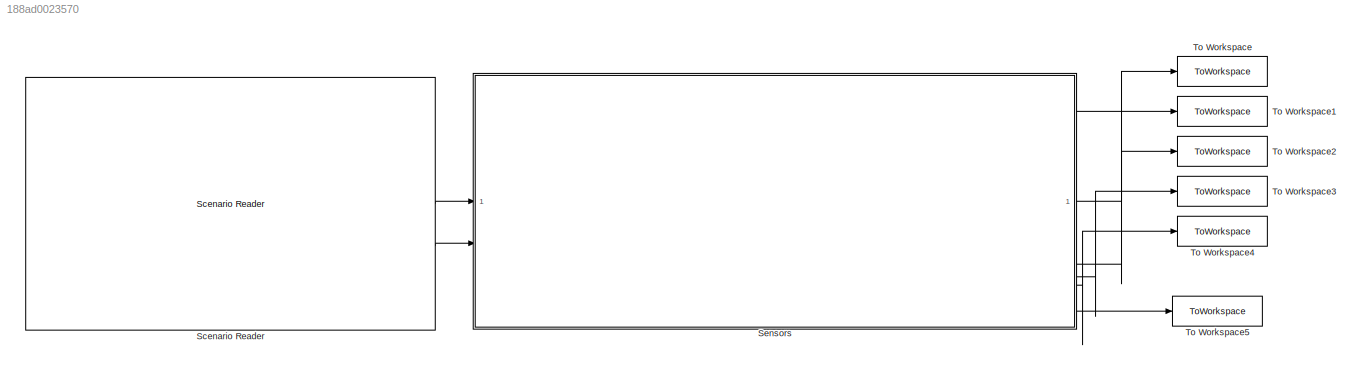
MODEL slx_188ad0023570
KIND model
CONFIG AbsTol = auto
CONFIG EnableMultiTasking = off
CONFIG FixedStep = auto
CONFIG MaxStep = auto
CONFIG MinStep = auto
CONFIG RelTol = 1e-3
CONFIG SampleTimeConstraint = Unconstrained
CONFIG SolverName = FixedStepDiscrete
CONFIG StartTime = 0.0
CONFIG StopTime = 5
WORKSPACE source: mxarray member
WORKSPACE firstWarning = 1
WORKSPACE originalScenarioChecksum = 'A2A9B0CE1167BCAA4C11940DA7C0D201'
BLOCK [Reference] Scenario Reader  REF=drivingscenarioandsensors/Scenario Reader
  Priority = -1
  SourceBlock = drivingscenarioandsensors/Scenario Reader
  SourceType = driving.scenario.internal.ScenarioReader
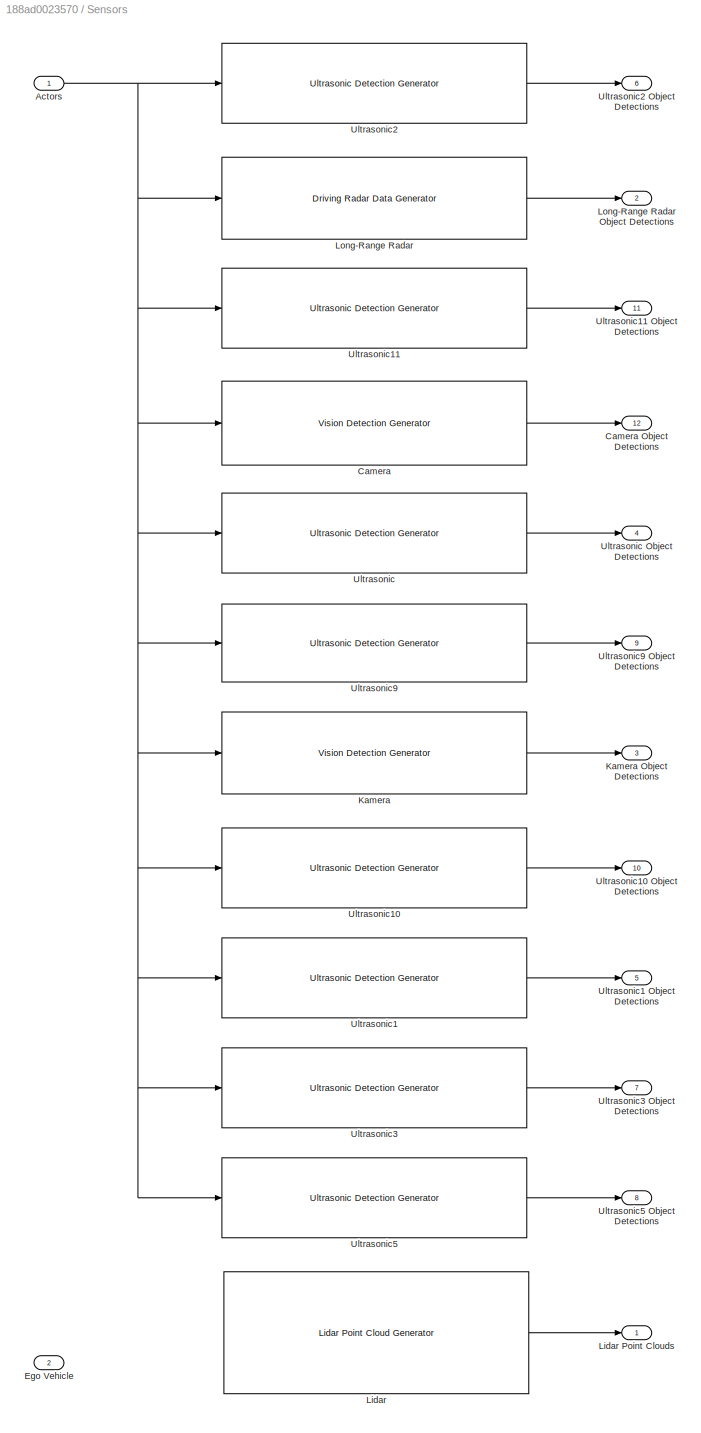
BLOCK [SubSystem] Sensors
BLOCK [Inport] Sensors/Actors
BLOCK [Reference] Sensors/Camera  REF=drivingscenarioandsensors/Vision Detection Generator
  SourceBlock = drivingscenarioandsensors/Vision Detection Generator
  SourceType = visionDetectionGenerator
BLOCK [Outport] Sensors/Camera Object Detections
  Port = 12
BLOCK [Inport] Sensors/Ego Vehicle
  Port = 2
BLOCK [Reference] Sensors/Kamera  REF=drivingscenarioandsensors/Vision Detection Generator
  SourceBlock = drivingscenarioandsensors/Vision Detection Generator
  SourceType = visionDetectionGenerator
BLOCK [Outport] Sensors/Kamera Object Detections
  Port = 3
BLOCK [Reference] Sensors/Lidar  REF=drivingscenarioandsensors/Lidar Point Cloud Generator
  SourceBlock = drivingscenarioandsensors/Lidar Point Cloud Generator
  SourceType = lidarPointCloudGenerator
BLOCK [Outport] Sensors/Lidar Point Clouds
BLOCK [Reference] Sensors/Long-Range Radar  REF=drivingscenarioandsensors/Driving Radar Data Generator
  SourceBlock = drivingscenarioandsensors/Driving Radar Data Generator
  SourceType = drivingRadarDataGenerator
BLOCK [Outport] Sensors/Long-Range Radar Object Detections
  Port = 2
BLOCK [Reference] Sensors/Ultrasonic  REF=drivingscenarioandsensors/Ultrasonic Detection Generator
  SourceBlock = drivingscenarioandsensors/Ultrasonic Detection Generator
  SourceType = ultrasonicDetectionGenerator
BLOCK [Outport] Sensors/Ultrasonic Object Detections
  Port = 4
BLOCK [Reference] Sensors/Ultrasonic1  REF=drivingscenarioandsensors/Ultrasonic Detection Generator
  SourceBlock = drivingscenarioandsensors/Ultrasonic Detection Generator
  SourceType = ultrasonicDetectionGenerator
BLOCK [Outport] Sensors/Ultrasonic1 Object Detections
  Port = 5
BLOCK [Reference] Sensors/Ultrasonic10  REF=drivingscenarioandsensors/Ultrasonic Detection Generator
  SourceBlock = drivingscenarioandsensors/Ultrasonic Detection Generator
  SourceType = ultrasonicDetectionGenerator
BLOCK [Outport] Sensors/Ultrasonic10 Object Detections
  Port = 10
BLOCK [Reference] Sensors/Ultrasonic11  REF=drivingscenarioandsensors/Ultrasonic Detection Generator
  SourceBlock = drivingscenarioandsensors/Ultrasonic Detection Generator
  SourceType = ultrasonicDetectionGenerator
BLOCK [Outport] Sensors/Ultrasonic11 Object Detections
  Port = 11
BLOCK [Reference] Sensors/Ultrasonic2  REF=drivingscenarioandsensors/Ultrasonic Detection Generator
  SourceBlock = drivingscenarioandsensors/Ultrasonic Detection Generator
  SourceType = ultrasonicDetectionGenerator
BLOCK [Outport] Sensors/Ultrasonic2 Object Detections
  Port = 6
BLOCK [Reference] Sensors/Ultrasonic3  REF=drivingscenarioandsensors/Ultrasonic Detection Generator
  SourceBlock = drivingscenarioandsensors/Ultrasonic Detection Generator
  SourceType = ultrasonicDetectionGenerator
BLOCK [Outport] Sensors/Ultrasonic3 Object Detections
  Port = 7
BLOCK [Reference] Sensors/Ultrasonic5  REF=drivingscenarioandsensors/Ultrasonic Detection Generator
  SourceBlock = drivingscenarioandsensors/Ultrasonic Detection Generator
  SourceType = ultrasonicDetectionGenerator
BLOCK [Outport] Sensors/Ultrasonic5 Object Detections
  Port = 8
BLOCK [Reference] Sensors/Ultrasonic9  REF=drivingscenarioandsensors/Ultrasonic Detection Generator
  SourceBlock = drivingscenarioandsensors/Ultrasonic Detection Generator
  SourceType = ultrasonicDetectionGenerator
BLOCK [Outport] Sensors/Ultrasonic9 Object Detections
  Port = 9
BLOCK [ToWorkspace] To Workspace
  FixptAsFi = on
  MaxDataPoints = inf
  SampleTime = -1
  SaveFormat = Timeseries
  VariableName = Lidar
BLOCK [ToWorkspace] To Workspace1
  FixptAsFi = on
  MaxDataPoints = inf
  SampleTime = -1
  SaveFormat = Timeseries
  VariableName = Radar
BLOCK [ToWorkspace] To Workspace2
  FixptAsFi = on
  MaxDataPoints = inf
  SampleTime = -1
  SaveFormat = Timeseries
  VariableName = Kamera
BLOCK [ToWorkspace] To Workspace3
  FixptAsFi = on
  MaxDataPoints = inf
  SampleTime = -1
  SaveFormat = Timeseries
  VariableName = Ultrasonic_Left
BLOCK [ToWorkspace] To Workspace4
  FixptAsFi = on
  MaxDataPoints = inf
  SampleTime = -1
  SaveFormat = Timeseries
  VariableName = Ultrasonic_right
BLOCK [ToWorkspace] To Workspace5
  FixptAsFi = on
  MaxDataPoints = inf
  SampleTime = -1
  SaveFormat = Timeseries
  VariableName = KameraB
LINE Scenario Reader:1 -> Sensors:1
LINE Scenario Reader:2 -> Sensors:2
NET Sensors/Actors:1 -> Sensors/Camera:1, Sensors/Kamera:1, Sensors/Long-Range Radar:1, Sensors/Ultrasonic10:1, Sensors/Ultrasonic11:1, Sensors/Ultrasonic1:1, Sensors/Ultrasonic2:1, Sensors/Ultrasonic3:1, Sensors/Ultrasonic5:1, Sensors/Ultrasonic9:1, Sensors/Ultrasonic:1
LINE Sensors/Camera:1 -> Sensors/Camera Object Detections:1
LINE Sensors/Kamera:1 -> Sensors/Kamera Object Detections:1
LINE Sensors/Lidar:1 -> Sensors/Lidar Point Clouds:1
LINE Sensors/Long-Range Radar:1 -> Sensors/Long-Range Radar Object Detections:1
LINE Sensors/Ultrasonic10:1 -> Sensors/Ultrasonic10 Object Detections:1
LINE Sensors/Ultrasonic11:1 -> Sensors/Ultrasonic11 Object Detections:1
LINE Sensors/Ultrasonic1:1 -> Sensors/Ultrasonic1 Object Detections:1
LINE Sensors/Ultrasonic2:1 -> Sensors/Ultrasonic2 Object Detections:1
LINE Sensors/Ultrasonic3:1 -> Sensors/Ultrasonic3 Object Detections:1
LINE Sensors/Ultrasonic5:1 -> Sensors/Ultrasonic5 Object Detections:1
LINE Sensors/Ultrasonic9:1 -> Sensors/Ultrasonic9 Object Detections:1
LINE Sensors/Ultrasonic:1 -> Sensors/Ultrasonic Object Detections:1
LINE Sensors:1 -> To Workspace:1
LINE Sensors:12 -> To Workspace5:1
LINE Sensors:2 -> To Workspace1:1
LINE Sensors:3 -> To Workspace2:1
LINE Sensors:4 -> To Workspace3:1
LINE Sensors:5 -> To Workspace4:1
note: NET lines group one-source signal fan-out (src -> all destinations, sorted); 1:1 wires keep LINE
